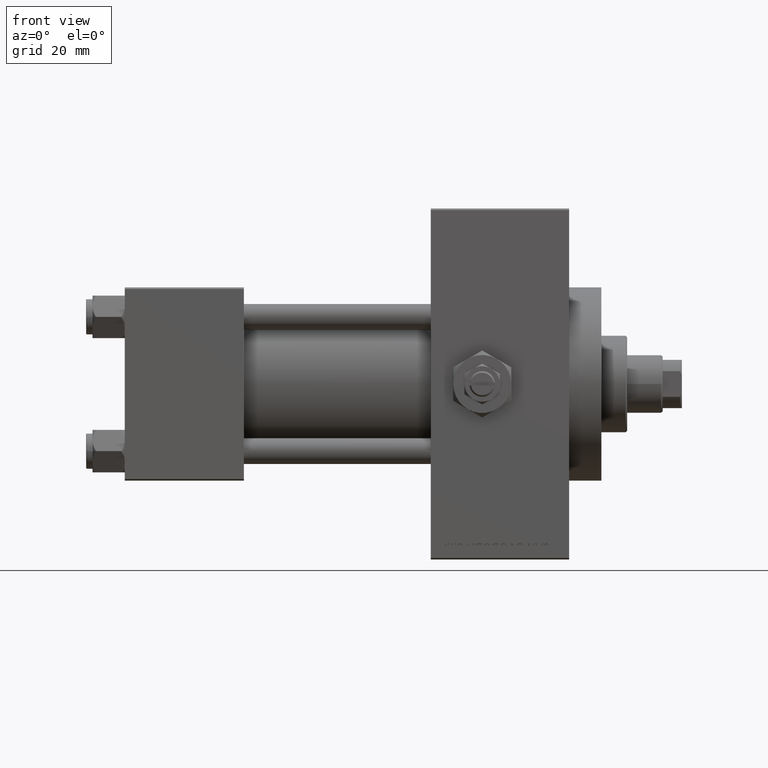
[diagram: clean part render]
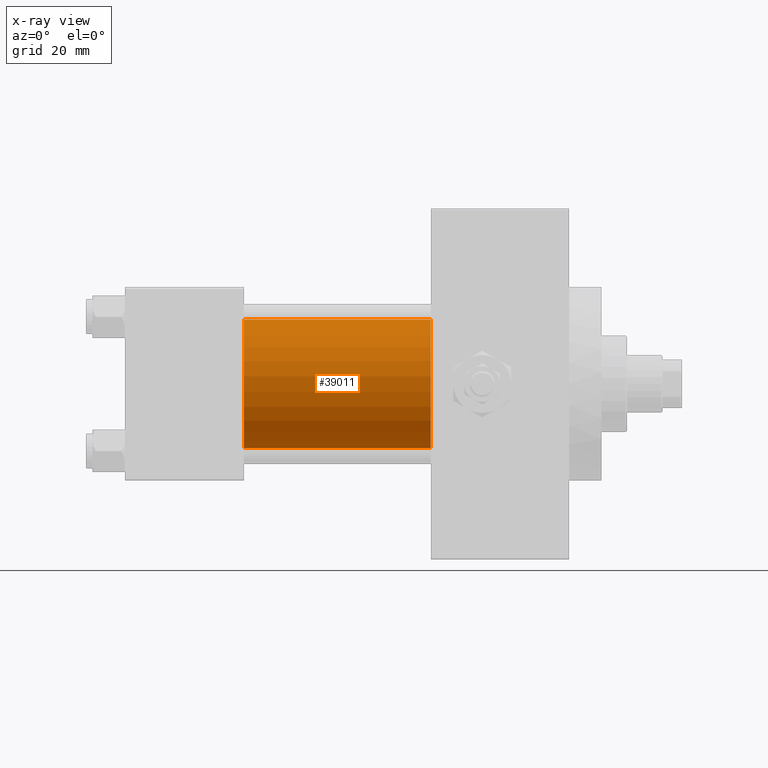
[diagram: x-ray — body ghosted, one internal face saturated and labeled with its STEP entity id]
A machine part, front view, then the same camera in x-ray: the body is ghosted and one INTERNAL B-rep face — a face not visible from any outside direction — is saturated and labeled: STEP entity #39011.
In plain terms, the highlighted cylindrical surface (partial cylindrical patch) has radius 20 mm, axis along (-1, -0, -0).
Its self-contained STEP definition (entity closure, byte-faithful):
#3379 = CARTESIAN_POINT ( 'NONE',  ( 95.00000000000000000, -2.602085213965210642E-15, 0.000000000000000000 ) ) ;
#4211 = LINE ( 'NONE', #30085, #35017 ) ;
#5139 = DIRECTION ( 'NONE',  ( -1.000000000000000000, -0.000000000000000000, -0.000000000000000000 ) ) ;
#9624 = DIRECTION ( 'NONE',  ( -1.000000000000000000, -0.000000000000000000, -0.000000000000000000 ) ) ;
#10694 = EDGE_CURVE ( 'NONE', #19157, #46213, #4211, .T. ) ;
#11014 = DIRECTION ( 'NONE',  ( 0.000000000000000000, 0.000000000000000000, -1.000000000000000000 ) ) ;
#12787 = AXIS2_PLACEMENT_3D ( 'NONE', #41136, #18719, #37683 ) ;
#13985 = DIRECTION ( 'NONE',  ( 1.000000000000000000, 0.000000000000000000, 0.000000000000000000 ) ) ;
#16947 = ORIENTED_EDGE ( 'NONE', *, *, #10694, .T. ) ;
#18489 = CIRCLE ( 'NONE', #22390, 20.00000000000000000 ) ;
#18719 = DIRECTION ( 'NONE',  ( 1.000000000000000000, 0.000000000000000000, 0.000000000000000000 ) ) ;
#19157 = VERTEX_POINT ( 'NONE', #44398 ) ;
#19258 = VECTOR ( 'NONE', #5139, 1000.000000000000000 ) ;
#20221 = VERTEX_POINT ( 'NONE', #29146 ) ;
#21596 = CARTESIAN_POINT ( 'NONE',  ( 37.00000000000000000, -2.602085213965210642E-15, 20.00000000000000000 ) ) ;
#22390 = AXIS2_PLACEMENT_3D ( 'NONE', #3379, #13985, #11014 ) ;
#23017 = CIRCLE ( 'NONE', #12787, 20.00000000000000000 ) ;
#23845 = LINE ( 'NONE', #38869, #19258 ) ;
#25929 = DIRECTION ( 'NONE',  ( -1.000000000000000000, -0.000000000000000000, -0.000000000000000000 ) ) ;
#26011 = EDGE_CURVE ( 'NONE', #20221, #26826, #23845, .T. ) ;
#26142 = EDGE_CURVE ( 'NONE', #20221, #19157, #18489, .T. ) ;
#26826 = VERTEX_POINT ( 'NONE', #21596 ) ;
#28122 = FACE_OUTER_BOUND ( 'NONE', #28841, .T. ) ;
#28363 = CYLINDRICAL_SURFACE ( 'NONE', #36563, 20.00000000000000000 ) ;
#28841 = EDGE_LOOP ( 'NONE', ( #33427, #16947, #44515, #43832 ) ) ;
#29146 = CARTESIAN_POINT ( 'NONE',  ( 95.00000000000000000, -2.602085213965210642E-15, 20.00000000000000000 ) ) ;
#30085 = CARTESIAN_POINT ( 'NONE',  ( 95.00000000000000000, -1.527916156705046464E-16, -20.00000000000000000 ) ) ;
#33427 = ORIENTED_EDGE ( 'NONE', *, *, #26142, .T. ) ;
#34671 = CARTESIAN_POINT ( 'NONE',  ( 37.00000000000000000, -1.527916156705046464E-16, -20.00000000000000000 ) ) ;
#34745 = EDGE_CURVE ( 'NONE', #26826, #46213, #23017, .T. ) ;
#35017 = VECTOR ( 'NONE', #25929, 1000.000000000000000 ) ;
#36563 = AXIS2_PLACEMENT_3D ( 'NONE', #40600, #9624, #48237 ) ;
#37683 = DIRECTION ( 'NONE',  ( 0.000000000000000000, 0.000000000000000000, -1.000000000000000000 ) ) ;
#38869 = CARTESIAN_POINT ( 'NONE',  ( 95.00000000000000000, -2.602085213965210642E-15, 20.00000000000000000 ) ) ;
#39011 = ADVANCED_FACE ( 'NONE', ( #28122 ), #28363, .F. ) ;
#40600 = CARTESIAN_POINT ( 'NONE',  ( 95.00000000000000000, -2.602085213965210642E-15, 0.000000000000000000 ) ) ;
#41136 = CARTESIAN_POINT ( 'NONE',  ( 37.00000000000000000, -2.602085213965210642E-15, 0.000000000000000000 ) ) ;
#43832 = ORIENTED_EDGE ( 'NONE', *, *, #26011, .F. ) ;
#44398 = CARTESIAN_POINT ( 'NONE',  ( 95.00000000000000000, -1.527916156705046464E-16, -20.00000000000000000 ) ) ;
#44515 = ORIENTED_EDGE ( 'NONE', *, *, #34745, .F. ) ;
#46213 = VERTEX_POINT ( 'NONE', #34671 ) ;
#48237 = DIRECTION ( 'NONE',  ( 0.000000000000000000, 0.000000000000000000, 1.000000000000000000 ) ) ;